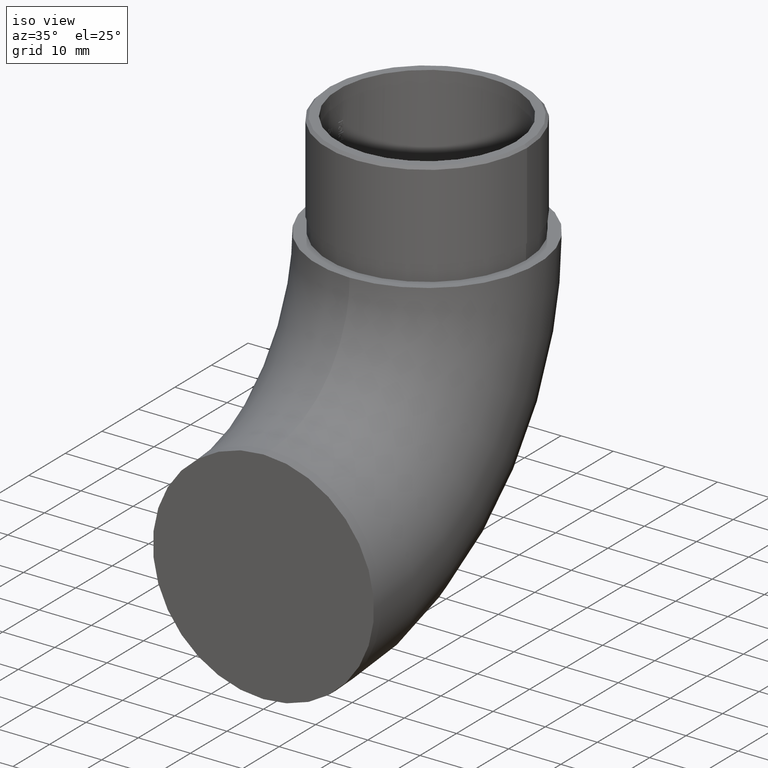
[diagram: clean part render]
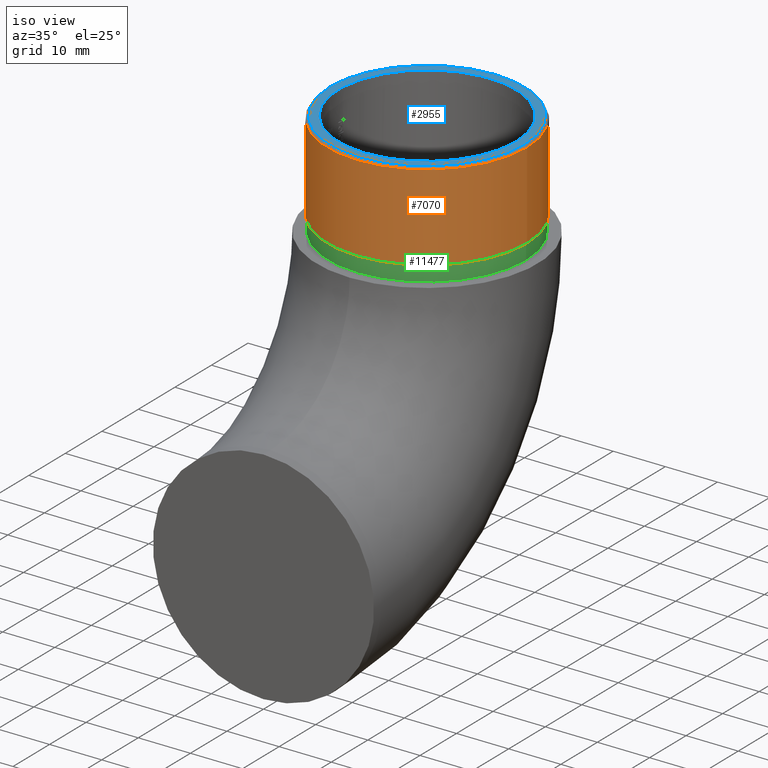
[diagram: same view with three faces highlighted in distinct colors, each labeled with its STEP entity id]
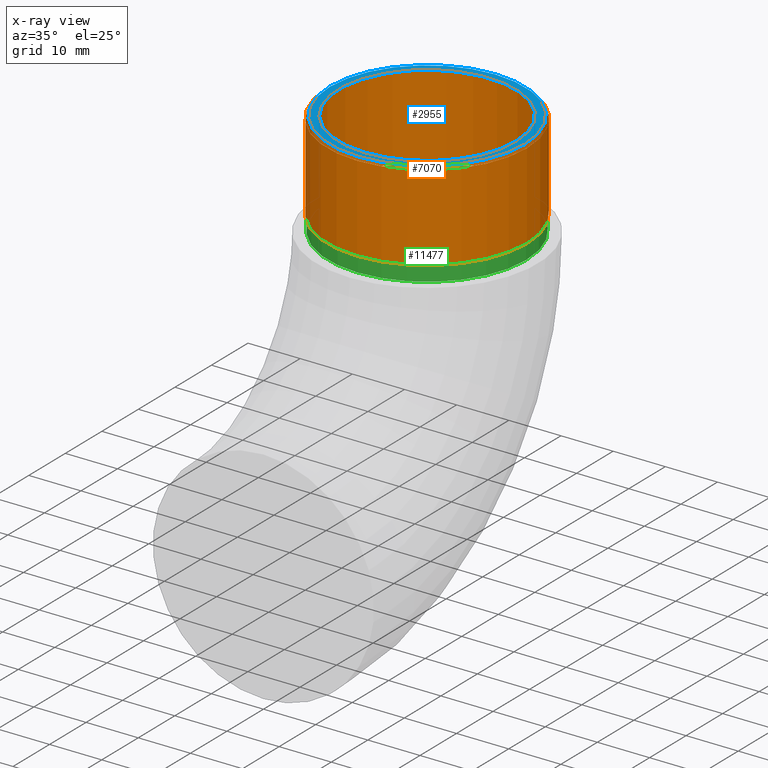
[diagram: x-ray of the same camera — body ghosted, the three highlighted faces saturated]
A machine part, iso view with three faces highlighted in distinct colors.
The next image is the same camera in x-ray (body ghosted, the three faces saturated) — at least one of them is partly hidden behind the body in this view.
Their STEP definitions:

[orange] entity #7070 — the highlighted cylindrical surface (bore or boss wall) has radius 19.15 mm, axis along (-0, -0, -1).
#281 = DIRECTION ( 'NONE',  ( 1.000000000000000000, 0.0000000000000000000, 0.0000000000000000000 ) ) ;
#320 = DIRECTION ( 'NONE',  ( 0.0000000000000000000, 0.0000000000000000000, -1.000000000000000000 ) ) ;
#648 = EDGE_LOOP ( 'NONE', ( #11499 ) ) ;
#864 = DIRECTION ( 'NONE',  ( 0.0000000000000000000, 0.0000000000000000000, 1.000000000000000000 ) ) ;
#1194 = EDGE_LOOP ( 'NONE', ( #3312 ) ) ;
#1287 = CIRCLE ( 'NONE', #3007, 19.15000000000000200 ) ;
#2251 = CARTESIAN_POINT ( 'NONE',  ( 0.0000000000000000000, 44.80000000000000400, 62.80000000000001100 ) ) ;
#2720 = CARTESIAN_POINT ( 'NONE',  ( 19.15000000000000200, 44.80000000000000400, 45.80000000000000400 ) ) ;
#3007 = AXIS2_PLACEMENT_3D ( 'NONE', #6562, #864, #11310 ) ;
#3212 = DIRECTION ( 'NONE',  ( -0.0000000000000000000, -0.0000000000000000000, -1.000000000000000000 ) ) ;
#3312 = ORIENTED_EDGE ( 'NONE', *, *, #11109, .T. ) ;
#4338 = EDGE_CURVE ( 'NONE', #11627, #11627, #9373, .T. ) ;
#4414 = AXIS2_PLACEMENT_3D ( 'NONE', #2251, #3212, #11716 ) ;
#4761 = FACE_OUTER_BOUND ( 'NONE', #648, .T. ) ;
#6562 = CARTESIAN_POINT ( 'NONE',  ( 0.0000000000000000000, 44.80000000000000400, 45.80000000000000400 ) ) ;
#7070 = ADVANCED_FACE ( 'NONE', ( #4761, #9497 ), #8467, .T. ) ;
#8323 = CARTESIAN_POINT ( 'NONE',  ( 19.15000000000000200, 44.80000000000000400, 62.30000000000001800 ) ) ;
#8467 = CYLINDRICAL_SURFACE ( 'NONE', #4414, 19.15000000000000200 ) ;
#8818 = VERTEX_POINT ( 'NONE', #2720 ) ;
#9373 = CIRCLE ( 'NONE', #10328, 19.15000000000000200 ) ;
#9497 = FACE_OUTER_BOUND ( 'NONE', #1194, .T. ) ;
#10328 = AXIS2_PLACEMENT_3D ( 'NONE', #10425, #320, #281 ) ;
#10425 = CARTESIAN_POINT ( 'NONE',  ( 0.0000000000000000000, 44.80000000000000400, 62.30000000000001800 ) ) ;
#11109 = EDGE_CURVE ( 'NONE', #8818, #8818, #1287, .T. ) ;
#11310 = DIRECTION ( 'NONE',  ( 1.000000000000000000, 0.0000000000000000000, 0.0000000000000000000 ) ) ;
#11499 = ORIENTED_EDGE ( 'NONE', *, *, #4338, .T. ) ;
#11627 = VERTEX_POINT ( 'NONE', #8323 ) ;
#11716 = DIRECTION ( 'NONE',  ( -1.000000000000000000, 0.0000000000000000000, 0.0000000000000000000 ) ) ;

[blue] entity #2955 — the highlighted planar face has unit normal (0, 0, 1).
#386 = CARTESIAN_POINT ( 'NONE',  ( 0.0000000000000000000, 44.80000000000000400, 62.80000000000001100 ) ) ;
#491 = CARTESIAN_POINT ( 'NONE',  ( 0.0000000000000000000, 44.80000000000000400, 62.80000000000001100 ) ) ;
#683 = CARTESIAN_POINT ( 'NONE',  ( 0.0000000000000000000, 44.80000000000000400, 62.80000000000001100 ) ) ;
#1478 = DIRECTION ( 'NONE',  ( 1.000000000000000000, 0.0000000000000000000, -0.0000000000000000000 ) ) ;
#1522 = PLANE ( 'NONE',  #5084 ) ;
#1895 = EDGE_CURVE ( 'NONE', #7355, #7355, #2129, .T. ) ;
#2126 = DIRECTION ( 'NONE',  ( 1.000000000000000000, 0.0000000000000000000, 0.0000000000000000000 ) ) ;
#2129 = CIRCLE ( 'NONE', #12109, 18.65000000000001300 ) ;
#2363 = DIRECTION ( 'NONE',  ( 0.0000000000000000000, 0.0000000000000000000, 1.000000000000000000 ) ) ;
#2955 = ADVANCED_FACE ( 'NONE', ( #4939, #7763 ), #1522, .T. ) ;
#3556 = CARTESIAN_POINT ( 'NONE',  ( 17.00000000000000000, 44.80000000000000400, 62.80000000000001100 ) ) ;
#4939 = FACE_OUTER_BOUND ( 'NONE', #7018, .T. ) ;
#5084 = AXIS2_PLACEMENT_3D ( 'NONE', #491, #2363, #1478 ) ;
#5459 = DIRECTION ( 'NONE',  ( 0.0000000000000000000, 0.0000000000000000000, 1.000000000000000000 ) ) ;
#5523 = AXIS2_PLACEMENT_3D ( 'NONE', #683, #5459, #11170 ) ;
#5701 = VERTEX_POINT ( 'NONE', #3556 ) ;
#6650 = CIRCLE ( 'NONE', #5523, 17.00000000000000000 ) ;
#6914 = EDGE_LOOP ( 'NONE', ( #9445 ) ) ;
#7018 = EDGE_LOOP ( 'NONE', ( #7852 ) ) ;
#7355 = VERTEX_POINT ( 'NONE', #8021 ) ;
#7763 = FACE_BOUND ( 'NONE', #6914, .T. ) ;
#7852 = ORIENTED_EDGE ( 'NONE', *, *, #1895, .T. ) ;
#7855 = DIRECTION ( 'NONE',  ( 0.0000000000000000000, 0.0000000000000000000, 1.000000000000000000 ) ) ;
#8021 = CARTESIAN_POINT ( 'NONE',  ( 18.65000000000001300, 44.80000000000000400, 62.80000000000001100 ) ) ;
#9445 = ORIENTED_EDGE ( 'NONE', *, *, #9883, .F. ) ;
#9883 = EDGE_CURVE ( 'NONE', #5701, #5701, #6650, .T. ) ;
#11170 = DIRECTION ( 'NONE',  ( 1.000000000000000000, 0.0000000000000000000, 0.0000000000000000000 ) ) ;
#12109 = AXIS2_PLACEMENT_3D ( 'NONE', #386, #7855, #2126 ) ;

[green] entity #11477 — the highlighted cylindrical surface (bore or boss wall) has radius 18.95 mm, axis along (-0, -0, -1).
#88 = CARTESIAN_POINT ( 'NONE',  ( 0.0000000000000000000, 44.80000000000000400, 45.80000000000000400 ) ) ;
#417 = FACE_OUTER_BOUND ( 'NONE', #2581, .T. ) ;
#460 = CARTESIAN_POINT ( 'NONE',  ( 0.0000000000000000000, 44.80000000000000400, 45.80000000000000400 ) ) ;
#946 = AXIS2_PLACEMENT_3D ( 'NONE', #3994, #6972, #6811 ) ;
#1140 = DIRECTION ( 'NONE',  ( 1.000000000000000000, 0.0000000000000000000, 0.0000000000000000000 ) ) ;
#2277 = EDGE_LOOP ( 'NONE', ( #11489 ) ) ;
#2581 = EDGE_LOOP ( 'NONE', ( #11324 ) ) ;
#2596 = CARTESIAN_POINT ( 'NONE',  ( 18.95000000000000300, 44.80000000000000400, 42.80000000000000400 ) ) ;
#2842 = AXIS2_PLACEMENT_3D ( 'NONE', #88, #4859, #1140 ) ;
#3592 = CARTESIAN_POINT ( 'NONE',  ( 18.95000000000000300, 44.80000000000000400, 45.80000000000000400 ) ) ;
#3994 = CARTESIAN_POINT ( 'NONE',  ( 0.0000000000000000000, 44.80000000000000400, 42.80000000000000400 ) ) ;
#4061 = EDGE_CURVE ( 'NONE', #5406, #5406, #7009, .T. ) ;
#4826 = VERTEX_POINT ( 'NONE', #3592 ) ;
#4859 = DIRECTION ( 'NONE',  ( 0.0000000000000000000, 0.0000000000000000000, 1.000000000000000000 ) ) ;
#4905 = AXIS2_PLACEMENT_3D ( 'NONE', #460, #11866, #9068 ) ;
#5406 = VERTEX_POINT ( 'NONE', #2596 ) ;
#6811 = DIRECTION ( 'NONE',  ( 1.000000000000000000, 0.0000000000000000000, 0.0000000000000000000 ) ) ;
#6972 = DIRECTION ( 'NONE',  ( 0.0000000000000000000, 0.0000000000000000000, 1.000000000000000000 ) ) ;
#7009 = CIRCLE ( 'NONE', #946, 18.95000000000000300 ) ;
#7259 = CIRCLE ( 'NONE', #2842, 18.95000000000000300 ) ;
#7404 = CYLINDRICAL_SURFACE ( 'NONE', #4905, 18.95000000000000300 ) ;
#9068 = DIRECTION ( 'NONE',  ( -1.000000000000000000, 0.0000000000000000000, 0.0000000000000000000 ) ) ;
#9586 = EDGE_CURVE ( 'NONE', #4826, #4826, #7259, .T. ) ;
#11228 = FACE_OUTER_BOUND ( 'NONE', #2277, .T. ) ;
#11324 = ORIENTED_EDGE ( 'NONE', *, *, #9586, .F. ) ;
#11477 = ADVANCED_FACE ( 'NONE', ( #417, #11228 ), #7404, .T. ) ;
#11489 = ORIENTED_EDGE ( 'NONE', *, *, #4061, .T. ) ;
#11866 = DIRECTION ( 'NONE',  ( -0.0000000000000000000, -0.0000000000000000000, -1.000000000000000000 ) ) ;